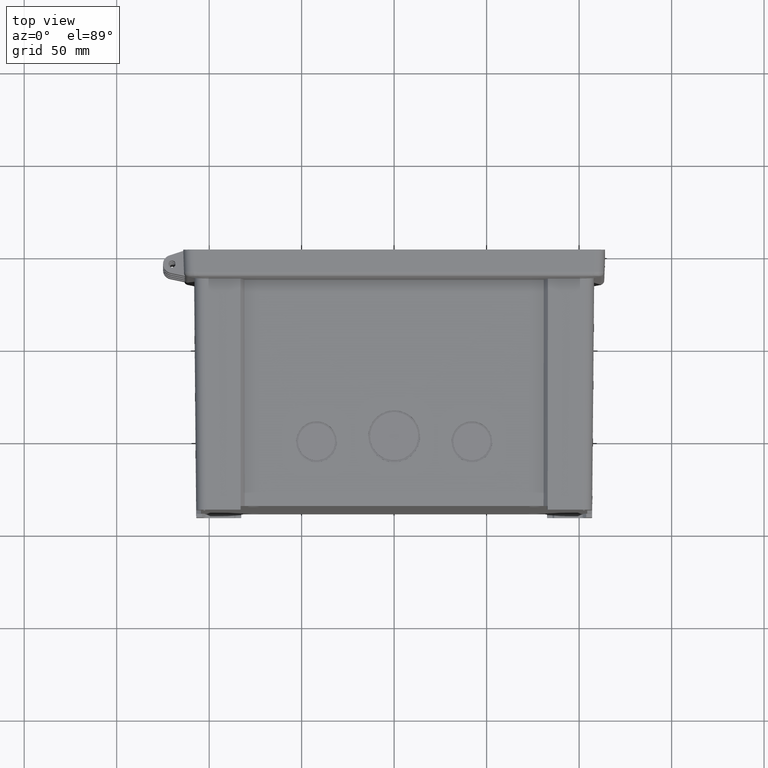
[diagram: clean part render]
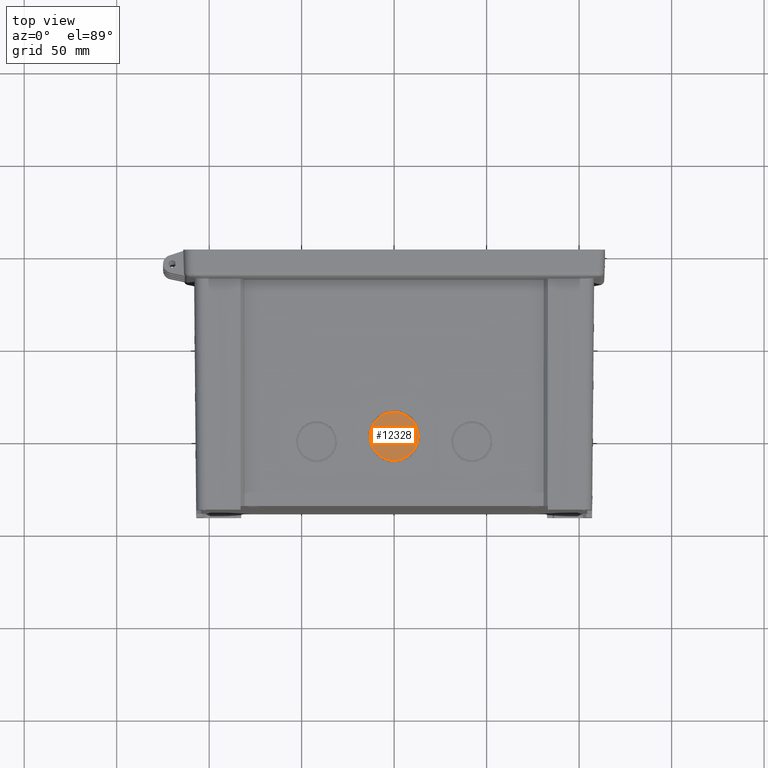
[diagram: same view with one face highlighted and labeled with its STEP entity id]
A machine part, top view. The second image highlights one B-rep face of the part: STEP entity #12328.
In plain terms, the highlighted planar face has unit normal (0, 0, 1).
Its self-contained STEP definition (entity closure, byte-faithful):
#3206=CARTESIAN_POINT('',(0.E0,-1.008E2,1.3E2));
#3207=DIRECTION('',(0.E0,0.E0,1.E0));
#3208=DIRECTION('',(1.E0,0.E0,0.E0));
#3209=AXIS2_PLACEMENT_3D('',#3206,#3207,#3208);
#3211=CARTESIAN_POINT('',(0.E0,-1.008E2,1.3E2));
#3212=DIRECTION('',(0.E0,0.E0,1.E0));
#3213=DIRECTION('',(-1.E0,0.E0,0.E0));
#3214=AXIS2_PLACEMENT_3D('',#3211,#3212,#3213);
#7612=CARTESIAN_POINT('',(1.3E1,-1.008E2,1.3E2));
#7613=CARTESIAN_POINT('',(-1.3E1,-1.008E2,1.3E2));
#7614=VERTEX_POINT('',#7612);
#7615=VERTEX_POINT('',#7613);
#12317=CARTESIAN_POINT('',(0.E0,0.E0,1.3E2));
#12318=DIRECTION('',(0.E0,0.E0,1.E0));
#12319=DIRECTION('',(1.E0,0.E0,0.E0));
#12320=AXIS2_PLACEMENT_3D('',#12317,#12318,#12319);
#12321=PLANE('',#12320);
#12323=ORIENTED_EDGE('',*,*,#12322,.F.);
#12325=ORIENTED_EDGE('',*,*,#12324,.F.);
#12326=EDGE_LOOP('',(#12323,#12325));
#12327=FACE_OUTER_BOUND('',#12326,.F.);
#12328=ADVANCED_FACE('',(#12327),#12321,.T.);
#3210=CIRCLE('',#3209,1.3E1);
#3215=CIRCLE('',#3214,1.3E1);
#12322=EDGE_CURVE('',#7614,#7615,#3210,.T.);
#12324=EDGE_CURVE('',#7615,#7614,#3215,.T.);